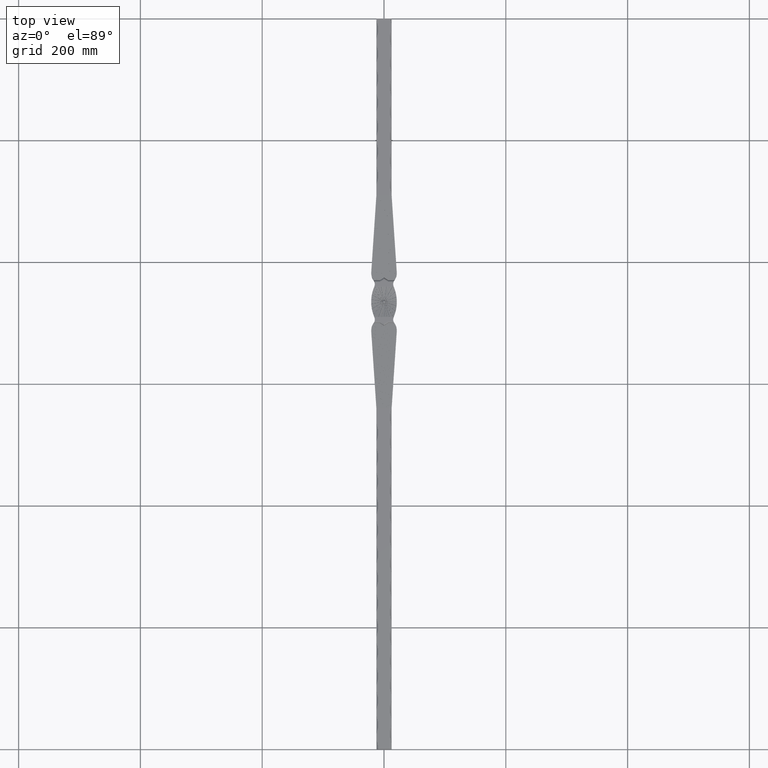
[diagram: clean part render]
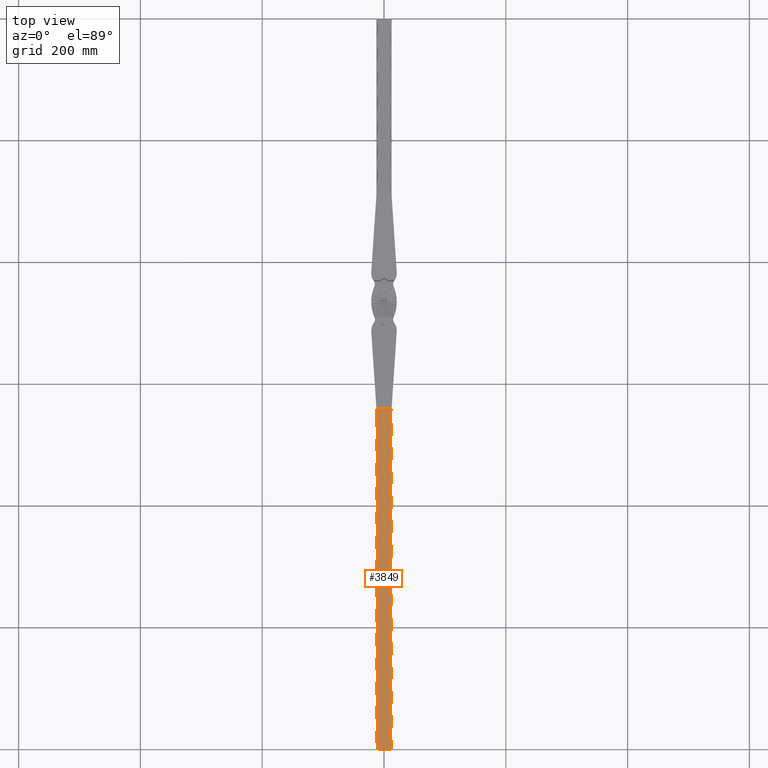
[diagram: same view with one face highlighted and labeled with its STEP entity id]
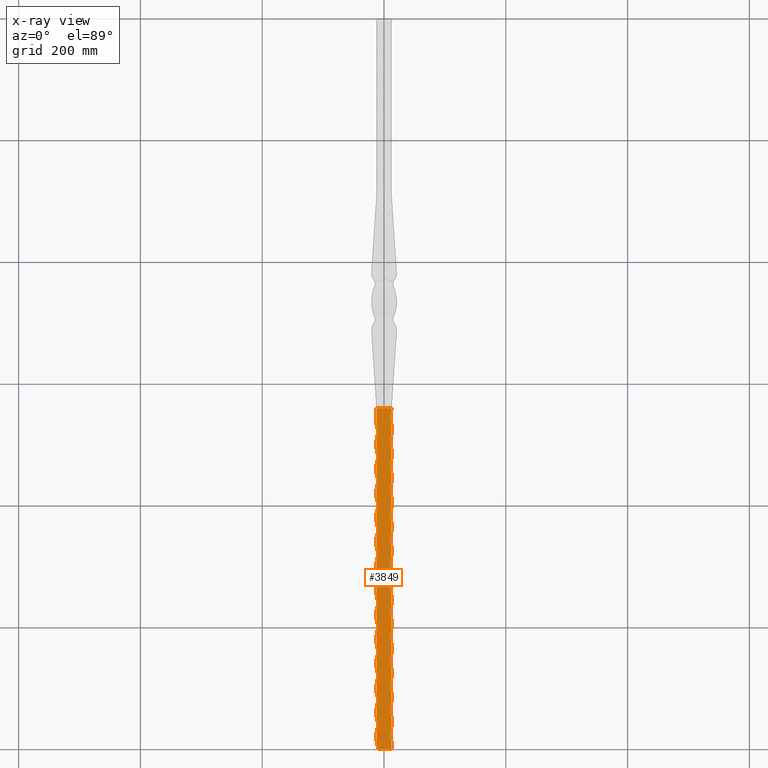
[diagram: x-ray of the same camera — body ghosted, the highlighted face saturated]
A machine part, top view. The second image highlights one B-rep face of the part: STEP entity #3849.
The next image is the same camera in x-ray: the body ghosted, the highlighted face saturated — about 0% of this face is hidden behind the body in this view.
In plain terms, the highlighted planar face has unit normal (0, 0, -1).
Its self-contained STEP definition (entity closure, byte-faithful):
#43 = DIRECTION ( 'NONE',  ( -0.000000000000000000, -1.000000000000000000, -0.000000000000000000 ) ) ;
#77 = DIRECTION ( 'NONE',  ( 0.000000000000000000, 0.000000000000000000, -1.000000000000000000 ) ) ;
#123 = ORIENTED_EDGE ( 'NONE', *, *, #25738, .T. ) ;
#254 = DIRECTION ( 'NONE',  ( 0.000000000000000000, 0.000000000000000000, -1.000000000000000000 ) ) ;
#279 = VERTEX_POINT ( 'NONE', #36423 ) ;
#289 = LINE ( 'NONE', #36944, #27868 ) ;
#303 = AXIS2_PLACEMENT_3D ( 'NONE', #32803, #25563, #3988 ) ;
#341 = DIRECTION ( 'NONE',  ( -0.000000000000000000, -1.000000000000000000, -0.000000000000000000 ) ) ;
#345 = VERTEX_POINT ( 'NONE', #5044 ) ;
#446 = VERTEX_POINT ( 'NONE', #22291 ) ;
#647 = CIRCLE ( 'NONE', #20082, 46.25000000000004974 ) ;
#665 = ORIENTED_EDGE ( 'NONE', *, *, #16492, .T. ) ;
#719 = DIRECTION ( 'NONE',  ( -0.000000000000000000, -1.000000000000000000, -0.000000000000000000 ) ) ;
#1097 = CARTESIAN_POINT ( 'NONE',  ( -12.49999999999999822, 560.0000000000000000, 12.50000000000000000 ) ) ;
#1150 = ORIENTED_EDGE ( 'NONE', *, *, #21909, .F. ) ;
#1206 = VERTEX_POINT ( 'NONE', #35515 ) ;
#1473 = DIRECTION ( 'NONE',  ( -0.000000000000000000, -1.000000000000000000, -0.000000000000000000 ) ) ;
#1676 = CARTESIAN_POINT ( 'NONE',  ( -56.25000000000003553, 160.0000000000000284, 12.50000000000000000 ) ) ;
#1821 = DIRECTION ( 'NONE',  ( 0.000000000000000000, 0.000000000000000000, -1.000000000000000000 ) ) ;
#1848 = EDGE_CURVE ( 'NONE', #12876, #27928, #24657, .T. ) ;
#1894 = VERTEX_POINT ( 'NONE', #25773 ) ;
#2107 = VECTOR ( 'NONE', #12495, 1000.000000000000000 ) ;
#2119 = CARTESIAN_POINT ( 'NONE',  ( 12.50000000000000000, 560.0000000000000000, 12.50000000000000000 ) ) ;
#2256 = ORIENTED_EDGE ( 'NONE', *, *, #41627, .T. ) ;
#2341 = VERTEX_POINT ( 'NONE', #31241 ) ;
#2352 = DIRECTION ( 'NONE',  ( -0.000000000000000000, -1.000000000000000000, -0.000000000000000000 ) ) ;
#2361 = VECTOR ( 'NONE', #31846, 1000.000000000000000 ) ;
#2522 = VERTEX_POINT ( 'NONE', #4083 ) ;
#2597 = LINE ( 'NONE', #5432, #8208 ) ;
#2669 = AXIS2_PLACEMENT_3D ( 'NONE', #28116, #27641, #2788 ) ;
#2788 = DIRECTION ( 'NONE',  ( -1.000000000000000000, 0.000000000000000000, 0.000000000000000000 ) ) ;
#2938 = ORIENTED_EDGE ( 'NONE', *, *, #11578, .F. ) ;
#2962 = ORIENTED_EDGE ( 'NONE', *, *, #44435, .F. ) ;
#3179 = CIRCLE ( 'NONE', #2669, 46.25000000000004974 ) ;
#3223 = CARTESIAN_POINT ( 'NONE',  ( -12.49999999999998579, 135.0000000000000284, 12.50000000000000000 ) ) ;
#3261 = CIRCLE ( 'NONE', #303, 46.25000000000004974 ) ;
#3507 = VERTEX_POINT ( 'NONE', #23798 ) ;
#3761 = EDGE_CURVE ( 'NONE', #345, #25442, #43120, .T. ) ;
#3783 = CIRCLE ( 'NONE', #6556, 46.25000000000004974 ) ;
#3849 = ADVANCED_FACE ( 'NONE', ( #43660 ), #39864, .F. ) ;
#3893 = CIRCLE ( 'NONE', #22404, 46.25000000000004974 ) ;
#3938 = CARTESIAN_POINT ( 'NONE',  ( -12.49999999999999822, 560.0000000000000000, 12.50000000000000000 ) ) ;
#3988 = DIRECTION ( 'NONE',  ( -1.000000000000000000, 2.700542492331458924E-15, 0.000000000000000000 ) ) ;
#4083 = CARTESIAN_POINT ( 'NONE',  ( -12.49999999999999645, 105.0000000000000000, 12.50000000000000000 ) ) ;
#4112 = DIRECTION ( 'NONE',  ( -0.000000000000000000, -1.000000000000000000, -0.000000000000000000 ) ) ;
#4135 = ORIENTED_EDGE ( 'NONE', *, *, #14621, .T. ) ;
#4149 = CARTESIAN_POINT ( 'NONE',  ( 56.25000000000004974, 385.0000000000000000, 12.50000000000000000 ) ) ;
#4176 = CARTESIAN_POINT ( 'NONE',  ( 12.50000000000000000, 560.0000000000000000, 12.50000000000000000 ) ) ;
#4458 = AXIS2_PLACEMENT_3D ( 'NONE', #22914, #37707, #37556 ) ;
#4518 = CARTESIAN_POINT ( 'NONE',  ( 12.49999999999999645, 39.99999999999997868, 12.50000000000000000 ) ) ;
#4649 = EDGE_CURVE ( 'NONE', #16579, #16599, #26145, .T. ) ;
#4684 = ORIENTED_EDGE ( 'NONE', *, *, #13782, .F. ) ;
#4869 = VERTEX_POINT ( 'NONE', #19097 ) ;
#4876 = CIRCLE ( 'NONE', #35352, 46.25000000000004974 ) ;
#4912 = LINE ( 'NONE', #4943, #39310 ) ;
#4943 = CARTESIAN_POINT ( 'NONE',  ( -12.49999999999999822, 0.000000000000000000, 12.50000000000000000 ) ) ;
#5030 = VECTOR ( 'NONE', #4112, 1000.000000000000000 ) ;
#5034 = CIRCLE ( 'NONE', #32755, 46.25000000000004974 ) ;
#5044 = CARTESIAN_POINT ( 'NONE',  ( -12.49999999999999645, 305.0000000000000000, 12.50000000000000000 ) ) ;
#5067 = AXIS2_PLACEMENT_3D ( 'NONE', #6005, #45720, #30913 ) ;
#5189 = DIRECTION ( 'NONE',  ( -0.000000000000000000, -1.000000000000000000, -0.000000000000000000 ) ) ;
#5425 = DIRECTION ( 'NONE',  ( -1.000000000000000000, 0.000000000000000000, 0.000000000000000000 ) ) ;
#5432 = CARTESIAN_POINT ( 'NONE',  ( -12.49999999999999822, 560.0000000000000000, 12.50000000000000000 ) ) ;
#5501 = DIRECTION ( 'NONE',  ( -0.000000000000000000, -0.000000000000000000, 1.000000000000000000 ) ) ;
#5513 = CARTESIAN_POINT ( 'NONE',  ( 56.25000000000004974, 145.0000000000000000, 12.50000000000000000 ) ) ;
#5561 = CIRCLE ( 'NONE', #6282, 46.25000000000004263 ) ;
#5928 = VERTEX_POINT ( 'NONE', #6411 ) ;
#6005 = CARTESIAN_POINT ( 'NONE',  ( -56.25000000000002842, 240.0000000000000568, 12.50000000000000000 ) ) ;
#6050 = CARTESIAN_POINT ( 'NONE',  ( 56.25000000000004974, 345.0000000000000568, 12.50000000000000000 ) ) ;
#6053 = EDGE_CURVE ( 'NONE', #32611, #20089, #45293, .T. ) ;
#6227 = ORIENTED_EDGE ( 'NONE', *, *, #7002, .T. ) ;
#6282 = AXIS2_PLACEMENT_3D ( 'NONE', #35497, #6488, #38820 ) ;
#6411 = CARTESIAN_POINT ( 'NONE',  ( -12.49999999999998046, 215.0000000000000284, 12.50000000000000000 ) ) ;
#6488 = DIRECTION ( 'NONE',  ( -0.000000000000000000, -0.000000000000000000, 1.000000000000000000 ) ) ;
#6556 = AXIS2_PLACEMENT_3D ( 'NONE', #37270, #1821, #41531 ) ;
#6666 = ORIENTED_EDGE ( 'NONE', *, *, #1848, .T. ) ;
#6729 = DIRECTION ( 'NONE',  ( -1.000000000000000000, 0.000000000000000000, -0.000000000000000000 ) ) ;
#6734 = CIRCLE ( 'NONE', #36416, 46.25000000000005684 ) ;
#6792 = CARTESIAN_POINT ( 'NONE',  ( 12.50000000000000000, 560.0000000000000000, 12.50000000000000000 ) ) ;
#6836 = LINE ( 'NONE', #6792, #23255 ) ;
#7002 = EDGE_CURVE ( 'NONE', #16579, #22234, #46338, .T. ) ;
#7024 = CARTESIAN_POINT ( 'NONE',  ( 12.49999999999999645, 240.0000000000000000, 12.50000000000000000 ) ) ;
#7169 = CARTESIAN_POINT ( 'NONE',  ( -56.25000000000003553, 80.00000000000001421, 12.50000000000000000 ) ) ;
#7187 = AXIS2_PLACEMENT_3D ( 'NONE', #25454, #254, #25616 ) ;
#7377 = DIRECTION ( 'NONE',  ( 0.000000000000000000, 0.000000000000000000, -1.000000000000000000 ) ) ;
#7385 = AXIS2_PLACEMENT_3D ( 'NONE', #19272, #40392, #37066 ) ;
#7478 = ORIENTED_EDGE ( 'NONE', *, *, #34932, .F. ) ;
#7479 = CARTESIAN_POINT ( 'NONE',  ( -12.49999999999998757, 95.00000000000002842, 12.50000000000000000 ) ) ;
#7577 = EDGE_CURVE ( 'NONE', #35785, #19045, #44068, .T. ) ;
#7657 = VERTEX_POINT ( 'NONE', #33741 ) ;
#7683 = DIRECTION ( 'NONE',  ( -0.000000000000000000, -1.000000000000000000, -0.000000000000000000 ) ) ;
#7818 = DIRECTION ( 'NONE',  ( -1.000000000000000000, 0.000000000000000000, 0.000000000000000000 ) ) ;
#8001 = ORIENTED_EDGE ( 'NONE', *, *, #9815, .F. ) ;
#8022 = AXIS2_PLACEMENT_3D ( 'NONE', #39163, #32218, #25142 ) ;
#8087 = VERTEX_POINT ( 'NONE', #29585 ) ;
#8111 = CARTESIAN_POINT ( 'NONE',  ( 56.25000000000004974, 465.0000000000000000, 12.50000000000000000 ) ) ;
#8195 = DIRECTION ( 'NONE',  ( -1.000000000000000000, 0.000000000000000000, 0.000000000000000000 ) ) ;
#8208 = VECTOR ( 'NONE', #8885, 1000.000000000000000 ) ;
#8215 = VERTEX_POINT ( 'NONE', #16695 ) ;
#8314 = ORIENTED_EDGE ( 'NONE', *, *, #11201, .F. ) ;
#8595 = EDGE_CURVE ( 'NONE', #38697, #36807, #6734, .T. ) ;
#8619 = CARTESIAN_POINT ( 'NONE',  ( -12.49999999999999822, 560.0000000000000000, 12.50000000000000000 ) ) ;
#8885 = DIRECTION ( 'NONE',  ( -0.000000000000000000, -1.000000000000000000, -0.000000000000000000 ) ) ;
#8888 = ORIENTED_EDGE ( 'NONE', *, *, #37172, .T. ) ;
#9044 = ORIENTED_EDGE ( 'NONE', *, *, #15720, .F. ) ;
#9105 = CARTESIAN_POINT ( 'NONE',  ( 12.50000000000000000, 560.0000000000000000, 12.50000000000000000 ) ) ;
#9175 = ORIENTED_EDGE ( 'NONE', *, *, #24459, .T. ) ;
#9221 = EDGE_CURVE ( 'NONE', #8215, #21460, #46807, .T. ) ;
#9233 = VERTEX_POINT ( 'NONE', #39243 ) ;
#9250 = DIRECTION ( 'NONE',  ( -0.000000000000000000, -1.000000000000000000, -0.000000000000000000 ) ) ;
#9273 = DIRECTION ( 'NONE',  ( 0.000000000000000000, 0.000000000000000000, -1.000000000000000000 ) ) ;
#9436 = ORIENTED_EDGE ( 'NONE', *, *, #7577, .F. ) ;
#9516 = CARTESIAN_POINT ( 'NONE',  ( 12.50000000000000000, 530.0000000000000000, 12.50000000000000000 ) ) ;
#9540 = VERTEX_POINT ( 'NONE', #14223 ) ;
#9615 = CARTESIAN_POINT ( 'NONE',  ( -12.49999999999997691, 255.0000000000000568, 12.50000000000000000 ) ) ;
#9653 = EDGE_CURVE ( 'NONE', #28780, #31723, #43358, .T. ) ;
#9815 = EDGE_CURVE ( 'NONE', #21418, #38552, #26432, .T. ) ;
#9858 = VECTOR ( 'NONE', #17371, 1000.000000000000000 ) ;
#10281 = ORIENTED_EDGE ( 'NONE', *, *, #8595, .F. ) ;
#10498 = ORIENTED_EDGE ( 'NONE', *, *, #22430, .T. ) ;
#10527 = CARTESIAN_POINT ( 'NONE',  ( -12.49999999999999822, 560.0000000000000000, 12.50000000000000000 ) ) ;
#10574 = CIRCLE ( 'NONE', #8022, 46.25000000000004974 ) ;
#10703 = VECTOR ( 'NONE', #15173, 1000.000000000000000 ) ;
#11201 = EDGE_CURVE ( 'NONE', #9233, #26825, #15668, .T. ) ;
#11212 = AXIS2_PLACEMENT_3D ( 'NONE', #10527, #28487, #6729 ) ;
#11218 = VECTOR ( 'NONE', #43, 1000.000000000000000 ) ;
#11261 = DIRECTION ( 'NONE',  ( -1.000000000000000000, 0.000000000000000000, 0.000000000000000000 ) ) ;
#11320 = ORIENTED_EDGE ( 'NONE', *, *, #4649, .F. ) ;
#11358 = VECTOR ( 'NONE', #38430, 1000.000000000000000 ) ;
#11578 = EDGE_CURVE ( 'NONE', #345, #16373, #38184, .T. ) ;
#11588 = CARTESIAN_POINT ( 'NONE',  ( -12.49999999999997158, 335.0000000000000568, 12.50000000000000000 ) ) ;
#11687 = LINE ( 'NONE', #26820, #2107 ) ;
#12029 = LINE ( 'NONE', #3938, #38526 ) ;
#12354 = DIRECTION ( 'NONE',  ( 0.000000000000000000, 0.000000000000000000, -1.000000000000000000 ) ) ;
#12437 = ORIENTED_EDGE ( 'NONE', *, *, #44637, .F. ) ;
#12440 = DIRECTION ( 'NONE',  ( -1.000000000000000000, 2.700542492331458529E-15, 0.000000000000000000 ) ) ;
#12495 = DIRECTION ( 'NONE',  ( -0.000000000000000000, -1.000000000000000000, -0.000000000000000000 ) ) ;
#12552 = VERTEX_POINT ( 'NONE', #18327 ) ;
#12579 = ORIENTED_EDGE ( 'NONE', *, *, #6053, .F. ) ;
#12634 = EDGE_CURVE ( 'NONE', #3507, #1894, #3261, .T. ) ;
#12731 = AXIS2_PLACEMENT_3D ( 'NONE', #25296, #46582, #14416 ) ;
#12763 = CARTESIAN_POINT ( 'NONE',  ( 12.50000000000000000, 560.0000000000000000, 12.50000000000000000 ) ) ;
#12876 = VERTEX_POINT ( 'NONE', #27848 ) ;
#12911 = CARTESIAN_POINT ( 'NONE',  ( 12.50000000000000000, 560.0000000000000000, 12.50000000000000000 ) ) ;
#13339 = VERTEX_POINT ( 'NONE', #9516 ) ;
#13424 = AXIS2_PLACEMENT_3D ( 'NONE', #5513, #9273, #16097 ) ;
#13511 = EDGE_CURVE ( 'NONE', #39318, #19045, #34748, .T. ) ;
#13512 = EDGE_CURVE ( 'NONE', #9233, #40845, #4876, .T. ) ;
#13586 = EDGE_CURVE ( 'NONE', #446, #31723, #17851, .T. ) ;
#13651 = ORIENTED_EDGE ( 'NONE', *, *, #44755, .F. ) ;
#13703 = CARTESIAN_POINT ( 'NONE',  ( -12.49999999999999645, 425.0000000000000000, 12.50000000000000000 ) ) ;
#13782 = EDGE_CURVE ( 'NONE', #39318, #34516, #40966, .T. ) ;
#13865 = CARTESIAN_POINT ( 'NONE',  ( 12.49999999999999645, 159.9999999999999716, 12.50000000000000000 ) ) ;
#14055 = CARTESIAN_POINT ( 'NONE',  ( 12.50000000000000000, 450.0000000000000000, 12.50000000000000000 ) ) ;
#14115 = EDGE_CURVE ( 'NONE', #14725, #38552, #24000, .T. ) ;
#14223 = CARTESIAN_POINT ( 'NONE',  ( -12.49999999999999645, 64.99999999999998579, 12.50000000000000000 ) ) ;
#14235 = ORIENTED_EDGE ( 'NONE', *, *, #23061, .F. ) ;
#14416 = DIRECTION ( 'NONE',  ( -1.000000000000000000, 0.000000000000000000, 0.000000000000000000 ) ) ;
#14431 = CIRCLE ( 'NONE', #16626, 46.25000000000005684 ) ;
#14444 = DIRECTION ( 'NONE',  ( -1.000000000000000000, 2.700542492331458529E-15, 0.000000000000000000 ) ) ;
#14555 = DIRECTION ( 'NONE',  ( -1.000000000000000000, 0.000000000000000000, 0.000000000000000000 ) ) ;
#14621 = EDGE_CURVE ( 'NONE', #3507, #29790, #19489, .T. ) ;
#14649 = DIRECTION ( 'NONE',  ( -1.000000000000000000, 0.000000000000000000, 0.000000000000000000 ) ) ;
#14725 = VERTEX_POINT ( 'NONE', #25848 ) ;
#14933 = EDGE_CURVE ( 'NONE', #2522, #23138, #35790, .T. ) ;
#14944 = AXIS2_PLACEMENT_3D ( 'NONE', #8111, #25787, #43596 ) ;
#15009 = VECTOR ( 'NONE', #2352, 1000.000000000000000 ) ;
#15173 = DIRECTION ( 'NONE',  ( -0.000000000000000000, -1.000000000000000000, -0.000000000000000000 ) ) ;
#15174 = CARTESIAN_POINT ( 'NONE',  ( -56.25000000000002132, 280.0000000000000000, 12.50000000000000000 ) ) ;
#15503 = DIRECTION ( 'NONE',  ( -0.000000000000000000, -1.000000000000000000, -0.000000000000000000 ) ) ;
#15661 = CARTESIAN_POINT ( 'NONE',  ( 12.49999999999999645, 320.0000000000000568, 12.50000000000000000 ) ) ;
#15668 = LINE ( 'NONE', #39754, #22447 ) ;
#15720 = EDGE_CURVE ( 'NONE', #14725, #25442, #36306, .T. ) ;
#15829 = CARTESIAN_POINT ( 'NONE',  ( -12.49999999999999822, 560.0000000000000000, 12.50000000000000000 ) ) ;
#15969 = DIRECTION ( 'NONE',  ( -1.000000000000000000, 0.000000000000000000, 0.000000000000000000 ) ) ;
#16097 = DIRECTION ( 'NONE',  ( -1.000000000000000000, 0.000000000000000000, 0.000000000000000000 ) ) ;
#16119 = CARTESIAN_POINT ( 'NONE',  ( -9.999999999999994671, 0.000000000000000000, 12.50000000000000000 ) ) ;
#16167 = EDGE_CURVE ( 'NONE', #43342, #45719, #24992, .T. ) ;
#16318 = VERTEX_POINT ( 'NONE', #7479 ) ;
#16373 = VERTEX_POINT ( 'NONE', #11588 ) ;
#16403 = ORIENTED_EDGE ( 'NONE', *, *, #12634, .F. ) ;
#16480 = DIRECTION ( 'NONE',  ( -1.000000000000000000, 0.000000000000000000, 0.000000000000000000 ) ) ;
#16492 = EDGE_CURVE ( 'NONE', #26153, #36807, #19952, .T. ) ;
#16579 = VERTEX_POINT ( 'NONE', #41362 ) ;
#16599 = VERTEX_POINT ( 'NONE', #30621 ) ;
#16626 = AXIS2_PLACEMENT_3D ( 'NONE', #32179, #35344, #42434 ) ;
#16634 = CARTESIAN_POINT ( 'NONE',  ( 12.50000000000000000, 560.0000000000000000, 12.50000000000000000 ) ) ;
#16695 = CARTESIAN_POINT ( 'NONE',  ( 12.50000000000000000, 490.0000000000000000, 12.50000000000000000 ) ) ;
#16707 = ORIENTED_EDGE ( 'NONE', *, *, #30130, .F. ) ;
#16726 = VECTOR ( 'NONE', #15503, 1000.000000000000000 ) ;
#16855 = DIRECTION ( 'NONE',  ( -0.000000000000000000, -0.000000000000000000, 1.000000000000000000 ) ) ;
#16866 = CARTESIAN_POINT ( 'NONE',  ( -12.49999999999999822, 560.0000000000000000, 12.50000000000000000 ) ) ;
#16963 = CARTESIAN_POINT ( 'NONE',  ( 12.50000000000000000, 560.0000000000000000, 12.50000000000000000 ) ) ;
#17179 = CARTESIAN_POINT ( 'NONE',  ( -12.49999999999999645, 504.9999999999998863, 12.50000000000000000 ) ) ;
#17368 = CARTESIAN_POINT ( 'NONE',  ( 56.25000000000004974, 225.0000000000000000, 12.50000000000000000 ) ) ;
#17371 = DIRECTION ( 'NONE',  ( -0.000000000000000000, -1.000000000000000000, -0.000000000000000000 ) ) ;
#17383 = CARTESIAN_POINT ( 'NONE',  ( -12.49999999999995737, 535.0000000000000000, 12.50000000000000000 ) ) ;
#17514 = CARTESIAN_POINT ( 'NONE',  ( -12.49999999999999822, 560.0000000000000000, 12.50000000000000000 ) ) ;
#17830 = DIRECTION ( 'NONE',  ( -0.000000000000000000, -1.000000000000000000, -0.000000000000000000 ) ) ;
#17851 = LINE ( 'NONE', #28732, #16726 ) ;
#18164 = DIRECTION ( 'NONE',  ( 0.000000000000000000, 0.000000000000000000, -1.000000000000000000 ) ) ;
#18195 = LINE ( 'NONE', #38058, #19333 ) ;
#18327 = CARTESIAN_POINT ( 'NONE',  ( -12.49999999999999645, 384.9999999999999432, 12.50000000000000000 ) ) ;
#18445 = VERTEX_POINT ( 'NONE', #15661 ) ;
#18817 = ORIENTED_EDGE ( 'NONE', *, *, #46603, .T. ) ;
#19045 = VERTEX_POINT ( 'NONE', #21131 ) ;
#19097 = CARTESIAN_POINT ( 'NONE',  ( -12.49999999999999645, 345.0000000000000000, 12.50000000000000000 ) ) ;
#19272 = CARTESIAN_POINT ( 'NONE',  ( -56.25000000000003553, 200.0000000000000000, 12.50000000000000000 ) ) ;
#19333 = VECTOR ( 'NONE', #20106, 1000.000000000000000 ) ;
#19400 = ORIENTED_EDGE ( 'NONE', *, *, #23188, .T. ) ;
#19456 = DIRECTION ( 'NONE',  ( -0.000000000000000000, -1.000000000000000000, -0.000000000000000000 ) ) ;
#19473 = EDGE_CURVE ( 'NONE', #40340, #1206, #20849, .T. ) ;
#19489 = LINE ( 'NONE', #17514, #9858 ) ;
#19703 = VERTEX_POINT ( 'NONE', #22146 ) ;
#19796 = DIRECTION ( 'NONE',  ( -0.000000000000000000, -0.000000000000000000, 1.000000000000000000 ) ) ;
#19861 = DIRECTION ( 'NONE',  ( -0.000000000000000000, -1.000000000000000000, -0.000000000000000000 ) ) ;
#19952 = LINE ( 'NONE', #15829, #24442 ) ;
#20071 = AXIS2_PLACEMENT_3D ( 'NONE', #6050, #23875, #16480 ) ;
#20082 = AXIS2_PLACEMENT_3D ( 'NONE', #34595, #20888, #42459 ) ;
#20089 = VERTEX_POINT ( 'NONE', #17383 ) ;
#20106 = DIRECTION ( 'NONE',  ( -0.000000000000000000, -1.000000000000000000, -0.000000000000000000 ) ) ;
#20452 = VERTEX_POINT ( 'NONE', #31179 ) ;
#20494 = VERTEX_POINT ( 'NONE', #37984 ) ;
#20515 = CARTESIAN_POINT ( 'NONE',  ( 12.50000000000000000, 0.000000000000000000, 12.50000000000000000 ) ) ;
#20809 = AXIS2_PLACEMENT_3D ( 'NONE', #27528, #16855, #42062 ) ;
#20849 = LINE ( 'NONE', #16963, #29251 ) ;
#20888 = DIRECTION ( 'NONE',  ( 0.000000000000000000, 0.000000000000000000, -1.000000000000000000 ) ) ;
#20954 = AXIS2_PLACEMENT_3D ( 'NONE', #33672, #44392, #7818 ) ;
#21036 = EDGE_LOOP ( 'NONE', ( #12579, #26164, #37246, #30083, #29623, #19400, #7478, #45918, #14235, #33389, #2938, #36252, #9044, #34371, #8001, #41171, #35756, #665, #10281, #10498, #30061, #38372, #45339, #2256, #16403, #4135, #40054, #123, #12437, #6666, #1150, #45149, #37826, #38227, #11320, #6227, #13651, #45823, #34232, #8888, #4684, #22145, #9436, #23532, #16707, #34143, #37234, #18817, #8314, #37892, #40978, #35036, #31110, #43522, #29489, #9175, #2962, #34517 ) ) ;
#21049 = VECTOR ( 'NONE', #26858, 1000.000000000000000 ) ;
#21131 = CARTESIAN_POINT ( 'NONE',  ( 12.49999999999999645, 280.0000000000000000, 12.50000000000000000 ) ) ;
#21418 = VERTEX_POINT ( 'NONE', #40127 ) ;
#21460 = VERTEX_POINT ( 'NONE', #25918 ) ;
#21576 = LINE ( 'NONE', #9105, #22697 ) ;
#21779 = LINE ( 'NONE', #12763, #43699 ) ;
#21909 = EDGE_CURVE ( 'NONE', #279, #27928, #34937, .T. ) ;
#22145 = ORIENTED_EDGE ( 'NONE', *, *, #13511, .T. ) ;
#22146 = CARTESIAN_POINT ( 'NONE',  ( -12.49999999999996625, 415.0000000000000568, 12.50000000000000000 ) ) ;
#22203 = CARTESIAN_POINT ( 'NONE',  ( -12.49999999999999112, 15.00000000000002665, 12.50000000000000000 ) ) ;
#22234 = VERTEX_POINT ( 'NONE', #13865 ) ;
#22291 = CARTESIAN_POINT ( 'NONE',  ( -12.49999999999999645, 464.9999999999998863, 12.50000000000000000 ) ) ;
#22351 = CARTESIAN_POINT ( 'NONE',  ( -12.49999999999999822, 560.0000000000000000, 12.50000000000000000 ) ) ;
#22404 = AXIS2_PLACEMENT_3D ( 'NONE', #30302, #44502, #5425 ) ;
#22430 = EDGE_CURVE ( 'NONE', #38697, #23138, #33238, .T. ) ;
#22447 = VECTOR ( 'NONE', #341, 1000.000000000000000 ) ;
#22460 = DIRECTION ( 'NONE',  ( -0.000000000000000000, -1.000000000000000000, -0.000000000000000000 ) ) ;
#22524 = VECTOR ( 'NONE', #9250, 1000.000000000000000 ) ;
#22628 = EDGE_CURVE ( 'NONE', #12552, #7657, #44494, .T. ) ;
#22697 = VECTOR ( 'NONE', #19861, 1000.000000000000000 ) ;
#22910 = EDGE_CURVE ( 'NONE', #9540, #16318, #24189, .T. ) ;
#22914 = CARTESIAN_POINT ( 'NONE',  ( -56.25000000000001421, 440.0000000000000568, 12.50000000000000000 ) ) ;
#22950 = CARTESIAN_POINT ( 'NONE',  ( -12.49999999999999112, 560.0000000000000000, 12.50000000000000000 ) ) ;
#23061 = EDGE_CURVE ( 'NONE', #4869, #7657, #5561, .T. ) ;
#23138 = VERTEX_POINT ( 'NONE', #3223 ) ;
#23188 = EDGE_CURVE ( 'NONE', #28780, #19703, #46164, .T. ) ;
#23255 = VECTOR ( 'NONE', #31557, 1000.000000000000000 ) ;
#23409 = VERTEX_POINT ( 'NONE', #26331 ) ;
#23532 = ORIENTED_EDGE ( 'NONE', *, *, #31000, .T. ) ;
#23798 = CARTESIAN_POINT ( 'NONE',  ( -12.49999999999999645, 25.00000000000001421, 12.50000000000000000 ) ) ;
#23875 = DIRECTION ( 'NONE',  ( 0.000000000000000000, 0.000000000000000000, -1.000000000000000000 ) ) ;
#23952 = VECTOR ( 'NONE', #24418, 1000.000000000000000 ) ;
#24000 = LINE ( 'NONE', #8619, #24579 ) ;
#24017 = LINE ( 'NONE', #38424, #15009 ) ;
#24189 = CIRCLE ( 'NONE', #43452, 46.25000000000005684 ) ;
#24371 = CIRCLE ( 'NONE', #35988, 46.25000000000004263 ) ;
#24418 = DIRECTION ( 'NONE',  ( -0.000000000000000000, -1.000000000000000000, -0.000000000000000000 ) ) ;
#24442 = VECTOR ( 'NONE', #22460, 1000.000000000000000 ) ;
#24459 = EDGE_CURVE ( 'NONE', #13339, #41692, #3893, .T. ) ;
#24579 = VECTOR ( 'NONE', #41097, 1000.000000000000000 ) ;
#24657 = CIRCLE ( 'NONE', #7187, 46.25000000000004974 ) ;
#24992 = CIRCLE ( 'NONE', #20071, 46.25000000000004974 ) ;
#25119 = CARTESIAN_POINT ( 'NONE',  ( -56.25000000000002132, 400.0000000000000000, 12.50000000000000000 ) ) ;
#25142 = DIRECTION ( 'NONE',  ( -1.000000000000000000, 5.329070518200751394E-15, 0.000000000000000000 ) ) ;
#25296 = CARTESIAN_POINT ( 'NONE',  ( 56.25000000000004974, 265.0000000000000000, 12.50000000000000000 ) ) ;
#25442 = VERTEX_POINT ( 'NONE', #29986 ) ;
#25454 = CARTESIAN_POINT ( 'NONE',  ( 56.25000000000004974, 25.00000000000000355, 12.50000000000000000 ) ) ;
#25479 = VERTEX_POINT ( 'NONE', #35674 ) ;
#25563 = DIRECTION ( 'NONE',  ( -0.000000000000000000, -0.000000000000000000, 1.000000000000000000 ) ) ;
#25616 = DIRECTION ( 'NONE',  ( -1.000000000000000000, 0.000000000000000000, 0.000000000000000000 ) ) ;
#25685 = EDGE_CURVE ( 'NONE', #4869, #16373, #11687, .T. ) ;
#25738 = EDGE_CURVE ( 'NONE', #28624, #38962, #4912, .T. ) ;
#25773 = CARTESIAN_POINT ( 'NONE',  ( -12.49999999999999112, 55.00000000000002842, 12.50000000000000000 ) ) ;
#25787 = DIRECTION ( 'NONE',  ( 0.000000000000000000, 0.000000000000000000, -1.000000000000000000 ) ) ;
#25848 = CARTESIAN_POINT ( 'NONE',  ( -12.49999999999999645, 264.9999999999999432, 12.50000000000000000 ) ) ;
#25918 = CARTESIAN_POINT ( 'NONE',  ( 12.49999999999999645, 520.0000000000000000, 12.50000000000000000 ) ) ;
#25949 = DIRECTION ( 'NONE',  ( -0.000000000000000000, -1.000000000000000000, -0.000000000000000000 ) ) ;
#26145 = LINE ( 'NONE', #2119, #43617 ) ;
#26153 = VERTEX_POINT ( 'NONE', #37648 ) ;
#26164 = ORIENTED_EDGE ( 'NONE', *, *, #42388, .T. ) ;
#26331 = CARTESIAN_POINT ( 'NONE',  ( 12.49999999999999645, 79.99999999999997158, 12.50000000000000000 ) ) ;
#26432 = CIRCLE ( 'NONE', #5067, 46.25000000000004974 ) ;
#26506 = CARTESIAN_POINT ( 'NONE',  ( 12.49999999999999645, 400.0000000000000000, 12.50000000000000000 ) ) ;
#26651 = CARTESIAN_POINT ( 'NONE',  ( 12.50000000000000000, 560.0000000000000000, 12.50000000000000000 ) ) ;
#26820 = CARTESIAN_POINT ( 'NONE',  ( -12.49999999999999822, 560.0000000000000000, 12.50000000000000000 ) ) ;
#26825 = VERTEX_POINT ( 'NONE', #26506 ) ;
#26858 = DIRECTION ( 'NONE',  ( 1.000000000000000000, 0.000000000000000000, 0.000000000000000000 ) ) ;
#27069 = CARTESIAN_POINT ( 'NONE',  ( -56.25000000000003553, 120.0000000000000284, 12.50000000000000000 ) ) ;
#27528 = CARTESIAN_POINT ( 'NONE',  ( -56.25000000000002132, 320.0000000000000568, 12.50000000000000000 ) ) ;
#27641 = DIRECTION ( 'NONE',  ( 0.000000000000000000, 0.000000000000000000, -1.000000000000000000 ) ) ;
#27848 = CARTESIAN_POINT ( 'NONE',  ( 12.50000000000000000, 10.00000000000000178, 12.50000000000000000 ) ) ;
#27859 = CARTESIAN_POINT ( 'NONE',  ( -12.49999999999999822, 560.0000000000000000, 12.50000000000000000 ) ) ;
#27868 = VECTOR ( 'NONE', #719, 1000.000000000000000 ) ;
#27925 = EDGE_CURVE ( 'NONE', #41858, #8087, #39127, .T. ) ;
#27928 = VERTEX_POINT ( 'NONE', #4518 ) ;
#28116 = CARTESIAN_POINT ( 'NONE',  ( 56.25000000000004974, 305.0000000000000568, 12.50000000000000000 ) ) ;
#28239 = LINE ( 'NONE', #12911, #11358 ) ;
#28487 = DIRECTION ( 'NONE',  ( 0.000000000000000000, 0.000000000000000000, -1.000000000000000000 ) ) ;
#28497 = EDGE_CURVE ( 'NONE', #26153, #5928, #37421, .T. ) ;
#28624 = VERTEX_POINT ( 'NONE', #16119 ) ;
#28676 = CARTESIAN_POINT ( 'NONE',  ( 12.50000000000000000, 170.0000000000000000, 12.50000000000000000 ) ) ;
#28732 = CARTESIAN_POINT ( 'NONE',  ( -12.49999999999999822, 560.0000000000000000, 12.50000000000000000 ) ) ;
#28780 = VERTEX_POINT ( 'NONE', #13703 ) ;
#28963 = CARTESIAN_POINT ( 'NONE',  ( 56.25000000000004974, 505.0000000000000000, 12.50000000000000000 ) ) ;
#29251 = VECTOR ( 'NONE', #31298, 1000.000000000000000 ) ;
#29489 = ORIENTED_EDGE ( 'NONE', *, *, #42876, .F. ) ;
#29585 = CARTESIAN_POINT ( 'NONE',  ( 12.49999999999999645, 480.0000000000000568, 12.50000000000000000 ) ) ;
#29623 = ORIENTED_EDGE ( 'NONE', *, *, #9653, .F. ) ;
#29741 = VECTOR ( 'NONE', #17830, 1000.000000000000000 ) ;
#29790 = VERTEX_POINT ( 'NONE', #22203 ) ;
#29986 = CARTESIAN_POINT ( 'NONE',  ( -12.49999999999997335, 295.0000000000000568, 12.50000000000000000 ) ) ;
#30061 = ORIENTED_EDGE ( 'NONE', *, *, #14933, .F. ) ;
#30083 = ORIENTED_EDGE ( 'NONE', *, *, #13586, .T. ) ;
#30130 = EDGE_CURVE ( 'NONE', #43342, #18445, #37298, .T. ) ;
#30302 = CARTESIAN_POINT ( 'NONE',  ( 56.25000000000004974, 545.0000000000000000, 12.50000000000000000 ) ) ;
#30311 = AXIS2_PLACEMENT_3D ( 'NONE', #4149, #32987, #8195 ) ;
#30433 = EDGE_CURVE ( 'NONE', #20494, #45719, #21779, .T. ) ;
#30598 = LINE ( 'NONE', #22950, #21049 ) ;
#30621 = CARTESIAN_POINT ( 'NONE',  ( 12.49999999999999645, 119.9999999999999716, 12.50000000000000000 ) ) ;
#30634 = EDGE_CURVE ( 'NONE', #2341, #23409, #24017, .T. ) ;
#30686 = CARTESIAN_POINT ( 'NONE',  ( -12.49999999999999822, 560.0000000000000000, 12.50000000000000000 ) ) ;
#30791 = DIRECTION ( 'NONE',  ( -1.000000000000000000, 1.800361661554305686E-15, 0.000000000000000000 ) ) ;
#30913 = DIRECTION ( 'NONE',  ( -1.000000000000000000, 0.000000000000000000, 0.000000000000000000 ) ) ;
#31000 = EDGE_CURVE ( 'NONE', #35785, #18445, #3179, .T. ) ;
#31110 = ORIENTED_EDGE ( 'NONE', *, *, #33875, .F. ) ;
#31179 = CARTESIAN_POINT ( 'NONE',  ( -12.49999999999999112, 560.0000000000000000, 12.50000000000000000 ) ) ;
#31241 = CARTESIAN_POINT ( 'NONE',  ( 12.50000000000000000, 90.00000000000000000, 12.50000000000000000 ) ) ;
#31298 = DIRECTION ( 'NONE',  ( -0.000000000000000000, -1.000000000000000000, -0.000000000000000000 ) ) ;
#31307 = CARTESIAN_POINT ( 'NONE',  ( 12.49999999999999645, 440.0000000000000568, 12.50000000000000000 ) ) ;
#31557 = DIRECTION ( 'NONE',  ( -0.000000000000000000, -1.000000000000000000, -0.000000000000000000 ) ) ;
#31723 = VERTEX_POINT ( 'NONE', #43042 ) ;
#31846 = DIRECTION ( 'NONE',  ( -0.000000000000000000, -1.000000000000000000, -0.000000000000000000 ) ) ;
#32035 = CARTESIAN_POINT ( 'NONE',  ( 12.50000000000000000, 330.0000000000000000, 12.50000000000000000 ) ) ;
#32179 = CARTESIAN_POINT ( 'NONE',  ( -56.25000000000000711, 480.0000000000000568, 12.50000000000000000 ) ) ;
#32218 = DIRECTION ( 'NONE',  ( -0.000000000000000000, -0.000000000000000000, 1.000000000000000000 ) ) ;
#32611 = VERTEX_POINT ( 'NONE', #17179 ) ;
#32673 = EDGE_CURVE ( 'NONE', #21418, #5928, #44174, .T. ) ;
#32691 = CARTESIAN_POINT ( 'NONE',  ( 56.25000000000004974, 425.0000000000000568, 12.50000000000000000 ) ) ;
#32755 = AXIS2_PLACEMENT_3D ( 'NONE', #17368, #18164, #42251 ) ;
#32803 = CARTESIAN_POINT ( 'NONE',  ( -56.25000000000004263, 40.00000000000002132, 12.50000000000000000 ) ) ;
#32860 = EDGE_CURVE ( 'NONE', #2522, #16318, #12029, .T. ) ;
#32987 = DIRECTION ( 'NONE',  ( 0.000000000000000000, 0.000000000000000000, -1.000000000000000000 ) ) ;
#33238 = LINE ( 'NONE', #1097, #5030 ) ;
#33389 = ORIENTED_EDGE ( 'NONE', *, *, #25685, .T. ) ;
#33672 = CARTESIAN_POINT ( 'NONE',  ( -56.25000000000000711, 520.0000000000000000, 12.50000000000000000 ) ) ;
#33741 = CARTESIAN_POINT ( 'NONE',  ( -12.49999999999996803, 375.0000000000000568, 12.50000000000000000 ) ) ;
#33875 = EDGE_CURVE ( 'NONE', #8215, #8087, #21576, .T. ) ;
#33911 = CARTESIAN_POINT ( 'NONE',  ( 56.25000000000004974, 185.0000000000000000, 12.50000000000000000 ) ) ;
#34134 = VECTOR ( 'NONE', #7683, 1000.000000000000000 ) ;
#34143 = ORIENTED_EDGE ( 'NONE', *, *, #16167, .T. ) ;
#34232 = ORIENTED_EDGE ( 'NONE', *, *, #19473, .F. ) ;
#34371 = ORIENTED_EDGE ( 'NONE', *, *, #14115, .T. ) ;
#34516 = VERTEX_POINT ( 'NONE', #7024 ) ;
#34517 = ORIENTED_EDGE ( 'NONE', *, *, #38615, .T. ) ;
#34595 = CARTESIAN_POINT ( 'NONE',  ( 56.25000000000004974, 105.0000000000000142, 12.50000000000000000 ) ) ;
#34748 = CIRCLE ( 'NONE', #12731, 46.25000000000004974 ) ;
#34932 = EDGE_CURVE ( 'NONE', #12552, #19703, #24371, .T. ) ;
#34937 = LINE ( 'NONE', #4176, #10703 ) ;
#34959 = DIRECTION ( 'NONE',  ( -0.000000000000000000, -1.000000000000000000, -0.000000000000000000 ) ) ;
#35036 = ORIENTED_EDGE ( 'NONE', *, *, #27925, .T. ) ;
#35344 = DIRECTION ( 'NONE',  ( -0.000000000000000000, -0.000000000000000000, 1.000000000000000000 ) ) ;
#35352 = AXIS2_PLACEMENT_3D ( 'NONE', #32691, #77, #11261 ) ;
#35497 = CARTESIAN_POINT ( 'NONE',  ( -56.25000000000002132, 360.0000000000000568, 12.50000000000000000 ) ) ;
#35515 = CARTESIAN_POINT ( 'NONE',  ( 12.49999999999999645, 199.9999999999999716, 12.50000000000000000 ) ) ;
#35582 = EDGE_CURVE ( 'NONE', #41858, #40845, #28239, .T. ) ;
#35674 = CARTESIAN_POINT ( 'NONE',  ( -12.49999999999995914, 495.0000000000000568, 12.50000000000000000 ) ) ;
#35756 = ORIENTED_EDGE ( 'NONE', *, *, #28497, .F. ) ;
#35785 = VERTEX_POINT ( 'NONE', #39846 ) ;
#35790 = CIRCLE ( 'NONE', #44749, 46.25000000000005684 ) ;
#35988 = AXIS2_PLACEMENT_3D ( 'NONE', #25119, #43234, #14555 ) ;
#36034 = DIRECTION ( 'NONE',  ( -0.000000000000000000, -0.000000000000000000, 1.000000000000000000 ) ) ;
#36077 = EDGE_CURVE ( 'NONE', #2341, #16599, #647, .T. ) ;
#36252 = ORIENTED_EDGE ( 'NONE', *, *, #3761, .T. ) ;
#36306 = CIRCLE ( 'NONE', #42055, 46.25000000000004263 ) ;
#36416 = AXIS2_PLACEMENT_3D ( 'NONE', #1676, #19796, #30791 ) ;
#36423 = CARTESIAN_POINT ( 'NONE',  ( 12.50000000000000000, 50.00000000000000000, 12.50000000000000000 ) ) ;
#36807 = VERTEX_POINT ( 'NONE', #39952 ) ;
#36944 = CARTESIAN_POINT ( 'NONE',  ( 12.50000000000000000, 560.0000000000000000, 12.50000000000000000 ) ) ;
#36985 = EDGE_CURVE ( 'NONE', #38687, #1206, #43957, .T. ) ;
#37066 = DIRECTION ( 'NONE',  ( -1.000000000000000000, 2.400482215405741046E-15, 0.000000000000000000 ) ) ;
#37172 = EDGE_CURVE ( 'NONE', #40340, #34516, #5034, .T. ) ;
#37234 = ORIENTED_EDGE ( 'NONE', *, *, #30433, .F. ) ;
#37246 = ORIENTED_EDGE ( 'NONE', *, *, #41756, .F. ) ;
#37270 = CARTESIAN_POINT ( 'NONE',  ( 56.25000000000004974, 65.00000000000001421, 12.50000000000000000 ) ) ;
#37284 = VECTOR ( 'NONE', #1473, 1000.000000000000000 ) ;
#37298 = LINE ( 'NONE', #46515, #2361 ) ;
#37421 = CIRCLE ( 'NONE', #7385, 46.25000000000005684 ) ;
#37556 = DIRECTION ( 'NONE',  ( -1.000000000000000000, 0.000000000000000000, 0.000000000000000000 ) ) ;
#37648 = CARTESIAN_POINT ( 'NONE',  ( -12.49999999999999645, 185.0000000000000000, 12.50000000000000000 ) ) ;
#37707 = DIRECTION ( 'NONE',  ( -0.000000000000000000, -0.000000000000000000, 1.000000000000000000 ) ) ;
#37826 = ORIENTED_EDGE ( 'NONE', *, *, #30634, .F. ) ;
#37892 = ORIENTED_EDGE ( 'NONE', *, *, #13512, .T. ) ;
#37984 = CARTESIAN_POINT ( 'NONE',  ( 12.50000000000000000, 370.0000000000000000, 12.50000000000000000 ) ) ;
#38058 = CARTESIAN_POINT ( 'NONE',  ( 12.50000000000000000, 560.0000000000000000, 12.50000000000000000 ) ) ;
#38110 = EDGE_CURVE ( 'NONE', #28624, #29790, #10574, .T. ) ;
#38184 = CIRCLE ( 'NONE', #20809, 46.25000000000004263 ) ;
#38227 = ORIENTED_EDGE ( 'NONE', *, *, #36077, .T. ) ;
#38372 = ORIENTED_EDGE ( 'NONE', *, *, #32860, .T. ) ;
#38424 = CARTESIAN_POINT ( 'NONE',  ( 12.50000000000000000, 560.0000000000000000, 12.50000000000000000 ) ) ;
#38430 = DIRECTION ( 'NONE',  ( -0.000000000000000000, -1.000000000000000000, -0.000000000000000000 ) ) ;
#38526 = VECTOR ( 'NONE', #25949, 1000.000000000000000 ) ;
#38552 = VERTEX_POINT ( 'NONE', #9615 ) ;
#38615 = EDGE_CURVE ( 'NONE', #20452, #20089, #39345, .T. ) ;
#38687 = VERTEX_POINT ( 'NONE', #28676 ) ;
#38697 = VERTEX_POINT ( 'NONE', #43351 ) ;
#38820 = DIRECTION ( 'NONE',  ( -1.000000000000000000, 0.000000000000000000, 0.000000000000000000 ) ) ;
#38962 = VERTEX_POINT ( 'NONE', #20515 ) ;
#39127 = CIRCLE ( 'NONE', #14944, 46.25000000000004974 ) ;
#39163 = CARTESIAN_POINT ( 'NONE',  ( -56.25000000000004263, 2.081668171172168513E-14, 12.50000000000000000 ) ) ;
#39243 = CARTESIAN_POINT ( 'NONE',  ( 12.50000000000000000, 410.0000000000000568, 12.50000000000000000 ) ) ;
#39310 = VECTOR ( 'NONE', #44482, 1000.000000000000000 ) ;
#39318 = VERTEX_POINT ( 'NONE', #44412 ) ;
#39345 = LINE ( 'NONE', #43195, #29741 ) ;
#39754 = CARTESIAN_POINT ( 'NONE',  ( 12.50000000000000000, 560.0000000000000000, 12.50000000000000000 ) ) ;
#39755 = EDGE_CURVE ( 'NONE', #279, #23409, #3783, .T. ) ;
#39846 = CARTESIAN_POINT ( 'NONE',  ( 12.50000000000000000, 290.0000000000000568, 12.50000000000000000 ) ) ;
#39864 = PLANE ( 'NONE',  #11212 ) ;
#39952 = CARTESIAN_POINT ( 'NONE',  ( -12.49999999999998224, 175.0000000000000284, 12.50000000000000000 ) ) ;
#40054 = ORIENTED_EDGE ( 'NONE', *, *, #38110, .F. ) ;
#40127 = CARTESIAN_POINT ( 'NONE',  ( -12.49999999999999645, 225.0000000000000000, 12.50000000000000000 ) ) ;
#40340 = VERTEX_POINT ( 'NONE', #45403 ) ;
#40392 = DIRECTION ( 'NONE',  ( -0.000000000000000000, -0.000000000000000000, 1.000000000000000000 ) ) ;
#40401 = DIRECTION ( 'NONE',  ( -0.000000000000000000, -0.000000000000000000, 1.000000000000000000 ) ) ;
#40845 = VERTEX_POINT ( 'NONE', #31307 ) ;
#40892 = LINE ( 'NONE', #22351, #34134 ) ;
#40966 = LINE ( 'NONE', #16634, #46013 ) ;
#40978 = ORIENTED_EDGE ( 'NONE', *, *, #35582, .F. ) ;
#41097 = DIRECTION ( 'NONE',  ( -0.000000000000000000, -1.000000000000000000, -0.000000000000000000 ) ) ;
#41106 = CARTESIAN_POINT ( 'NONE',  ( 12.49999999999999645, 360.0000000000000568, 12.50000000000000000 ) ) ;
#41171 = ORIENTED_EDGE ( 'NONE', *, *, #32673, .T. ) ;
#41362 = CARTESIAN_POINT ( 'NONE',  ( 12.50000000000000000, 130.0000000000000000, 12.50000000000000000 ) ) ;
#41531 = DIRECTION ( 'NONE',  ( -1.000000000000000000, 0.000000000000000000, 0.000000000000000000 ) ) ;
#41627 = EDGE_CURVE ( 'NONE', #9540, #1894, #2597, .T. ) ;
#41669 = DIRECTION ( 'NONE',  ( -0.000000000000000000, -1.000000000000000000, -0.000000000000000000 ) ) ;
#41692 = VERTEX_POINT ( 'NONE', #45135 ) ;
#41756 = EDGE_CURVE ( 'NONE', #446, #25479, #14431, .T. ) ;
#41858 = VERTEX_POINT ( 'NONE', #14055 ) ;
#41917 = VECTOR ( 'NONE', #34959, 1000.000000000000000 ) ;
#42055 = AXIS2_PLACEMENT_3D ( 'NONE', #15174, #40401, #44005 ) ;
#42062 = DIRECTION ( 'NONE',  ( -1.000000000000000000, 0.000000000000000000, 0.000000000000000000 ) ) ;
#42251 = DIRECTION ( 'NONE',  ( -1.000000000000000000, 0.000000000000000000, 0.000000000000000000 ) ) ;
#42388 = EDGE_CURVE ( 'NONE', #32611, #25479, #40892, .T. ) ;
#42434 = DIRECTION ( 'NONE',  ( -1.000000000000000000, 0.000000000000000000, 0.000000000000000000 ) ) ;
#42459 = DIRECTION ( 'NONE',  ( -1.000000000000000000, 0.000000000000000000, 0.000000000000000000 ) ) ;
#42683 = AXIS2_PLACEMENT_3D ( 'NONE', #33911, #12354, #15969 ) ;
#42818 = CIRCLE ( 'NONE', #30311, 46.25000000000004974 ) ;
#42876 = EDGE_CURVE ( 'NONE', #13339, #21460, #289, .T. ) ;
#43042 = CARTESIAN_POINT ( 'NONE',  ( -12.49999999999996270, 455.0000000000000568, 12.50000000000000000 ) ) ;
#43120 = LINE ( 'NONE', #27859, #23952 ) ;
#43195 = CARTESIAN_POINT ( 'NONE',  ( -12.49999999999999822, 560.0000000000000000, 12.50000000000000000 ) ) ;
#43234 = DIRECTION ( 'NONE',  ( -0.000000000000000000, -0.000000000000000000, 1.000000000000000000 ) ) ;
#43342 = VERTEX_POINT ( 'NONE', #32035 ) ;
#43351 = CARTESIAN_POINT ( 'NONE',  ( -12.49999999999999645, 145.0000000000000284, 12.50000000000000000 ) ) ;
#43358 = CIRCLE ( 'NONE', #4458, 46.25000000000004974 ) ;
#43452 = AXIS2_PLACEMENT_3D ( 'NONE', #7169, #36034, #14444 ) ;
#43522 = ORIENTED_EDGE ( 'NONE', *, *, #9221, .T. ) ;
#43596 = DIRECTION ( 'NONE',  ( -1.000000000000000000, 0.000000000000000000, 0.000000000000000000 ) ) ;
#43617 = VECTOR ( 'NONE', #41669, 1000.000000000000000 ) ;
#43660 = FACE_OUTER_BOUND ( 'NONE', #21036, .T. ) ;
#43699 = VECTOR ( 'NONE', #5189, 1000.000000000000000 ) ;
#43841 = CARTESIAN_POINT ( 'NONE',  ( -12.49999999999999822, 560.0000000000000000, 12.50000000000000000 ) ) ;
#43957 = CIRCLE ( 'NONE', #42683, 46.25000000000004974 ) ;
#44005 = DIRECTION ( 'NONE',  ( -1.000000000000000000, 0.000000000000000000, 0.000000000000000000 ) ) ;
#44068 = LINE ( 'NONE', #26651, #37284 ) ;
#44174 = LINE ( 'NONE', #16866, #41917 ) ;
#44392 = DIRECTION ( 'NONE',  ( -0.000000000000000000, -0.000000000000000000, 1.000000000000000000 ) ) ;
#44412 = CARTESIAN_POINT ( 'NONE',  ( 12.50000000000000000, 250.0000000000000000, 12.50000000000000000 ) ) ;
#44435 = EDGE_CURVE ( 'NONE', #20452, #41692, #30598, .T. ) ;
#44482 = DIRECTION ( 'NONE',  ( 1.000000000000000000, 0.000000000000000000, 0.000000000000000000 ) ) ;
#44494 = LINE ( 'NONE', #30686, #22524 ) ;
#44502 = DIRECTION ( 'NONE',  ( 0.000000000000000000, 0.000000000000000000, -1.000000000000000000 ) ) ;
#44637 = EDGE_CURVE ( 'NONE', #12876, #38962, #18195, .T. ) ;
#44749 = AXIS2_PLACEMENT_3D ( 'NONE', #27069, #5501, #12440 ) ;
#44755 = EDGE_CURVE ( 'NONE', #38687, #22234, #6836, .T. ) ;
#45135 = CARTESIAN_POINT ( 'NONE',  ( 12.49999999999998757, 560.0000000000000000, 12.50000000000001066 ) ) ;
#45149 = ORIENTED_EDGE ( 'NONE', *, *, #39755, .T. ) ;
#45293 = CIRCLE ( 'NONE', #20954, 46.25000000000005684 ) ;
#45339 = ORIENTED_EDGE ( 'NONE', *, *, #22910, .F. ) ;
#45403 = CARTESIAN_POINT ( 'NONE',  ( 12.50000000000000000, 210.0000000000000284, 12.50000000000000000 ) ) ;
#45719 = VERTEX_POINT ( 'NONE', #41106 ) ;
#45720 = DIRECTION ( 'NONE',  ( -0.000000000000000000, -0.000000000000000000, 1.000000000000000000 ) ) ;
#45823 = ORIENTED_EDGE ( 'NONE', *, *, #36985, .T. ) ;
#45918 = ORIENTED_EDGE ( 'NONE', *, *, #22628, .T. ) ;
#46013 = VECTOR ( 'NONE', #19456, 1000.000000000000000 ) ;
#46164 = LINE ( 'NONE', #43841, #11218 ) ;
#46338 = CIRCLE ( 'NONE', #13424, 46.25000000000004974 ) ;
#46515 = CARTESIAN_POINT ( 'NONE',  ( 12.50000000000000000, 560.0000000000000000, 12.50000000000000000 ) ) ;
#46582 = DIRECTION ( 'NONE',  ( 0.000000000000000000, 0.000000000000000000, -1.000000000000000000 ) ) ;
#46603 = EDGE_CURVE ( 'NONE', #20494, #26825, #42818, .T. ) ;
#46701 = AXIS2_PLACEMENT_3D ( 'NONE', #28963, #7377, #14649 ) ;
#46807 = CIRCLE ( 'NONE', #46701, 46.25000000000004974 ) ;